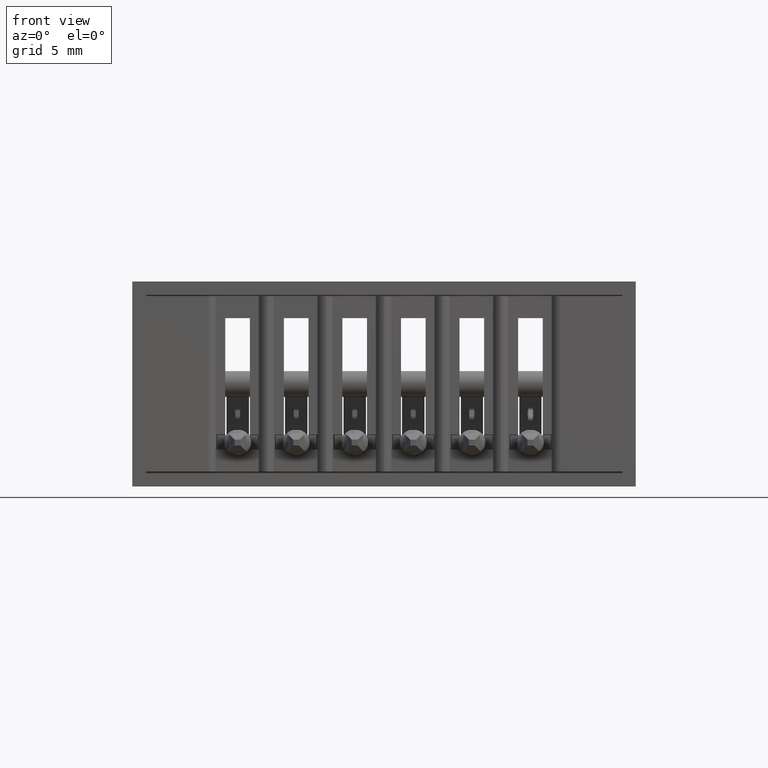
[diagram: clean part render]
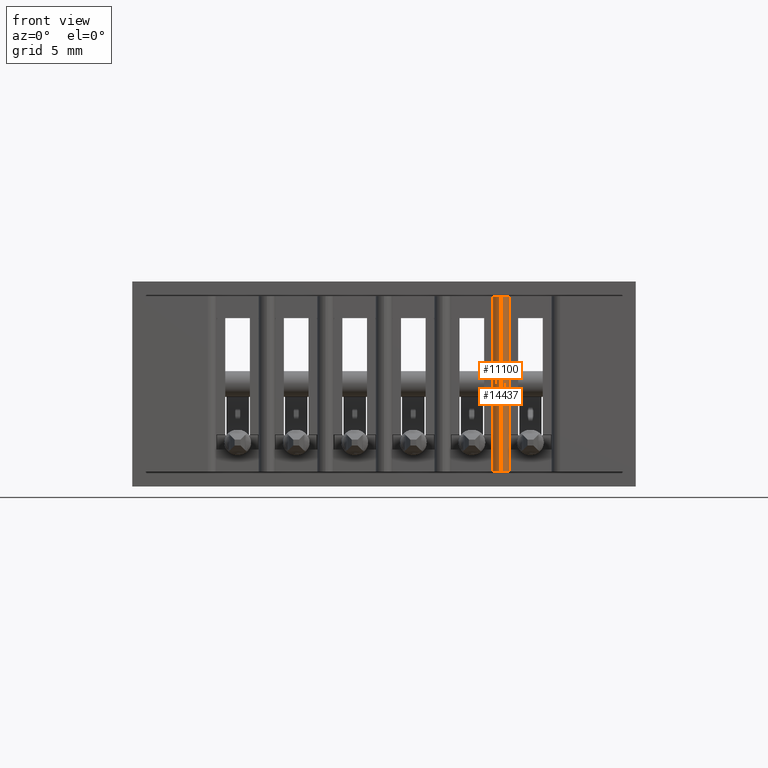
[diagram: same view with one multi-face feature highlighted, each face labeled with its STEP entity id]
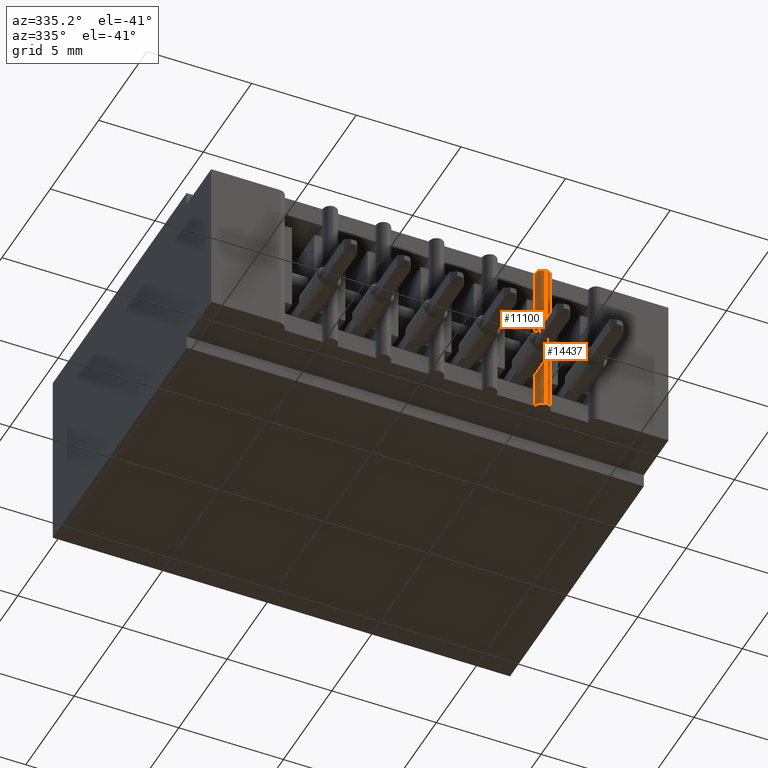
[diagram: same view with one multi-face feature highlighted, each face labeled with its STEP entity id]
A machine part, front view. The highlighted faces form ONE feature: a constant-radius fillet chain: 2 tangent blend faces with common blend radius 0.381 mm. The faces share edges in the B-rep.
A second angle (auxiliary view) of the same feature is appended — it is thin or edge-on in the first view.
Their STEP definitions:
[1] entity #14437 (Cylinder):
#158 = VERTEX_POINT ( 'NONE', #5307 ) ;
#283 = LINE ( 'NONE', #2545, #14104 ) ;
#459 = CIRCLE ( 'NONE', #10524, 0.01499999999999997689 ) ;
#464 = CARTESIAN_POINT ( 'NONE',  ( 0.6439999999999997948, 0.01499999999999997516, -0.3249999999999999556 ) ) ;
#583 = ORIENTED_EDGE ( 'NONE', *, *, #2300, .T. ) ;
#607 = VERTEX_POINT ( 'NONE', #4984 ) ;
#623 = DIRECTION ( 'NONE',  ( -0.0000000000000000000, -0.0000000000000000000, 1.000000000000000000 ) ) ;
#1417 = CARTESIAN_POINT ( 'NONE',  ( 0.6299999999999993383, 3.337045290419381758E-05, -0.02500000000000000486 ) ) ;
#1454 = ORIENTED_EDGE ( 'NONE', *, *, #5465, .T. ) ;
#1822 = VERTEX_POINT ( 'NONE', #1417 ) ;
#2186 = CARTESIAN_POINT ( 'NONE',  ( 0.6299999999999993383, 3.337045290419808662E-05, -0.1874999999999999722 ) ) ;
#2201 = LINE ( 'NONE', #12697, #14460 ) ;
#2300 = EDGE_CURVE ( 'NONE', #158, #6837, #9248, .T. ) ;
#2372 = ORIENTED_EDGE ( 'NONE', *, *, #11870, .T. ) ;
#2414 = CARTESIAN_POINT ( 'NONE',  ( 0.6289999999999997815, 0.01499999999999997689, -0.3499999999999999778 ) ) ;
#2475 = VERTEX_POINT ( 'NONE', #3617 ) ;
#2545 = CARTESIAN_POINT ( 'NONE',  ( 0.6439999999999997948, 0.01499999999999997516, -0.3499999999999999778 ) ) ;
#2807 = ORIENTED_EDGE ( 'NONE', *, *, #11250, .T. ) ;
#2895 = LINE ( 'NONE', #6412, #7635 ) ;
#3096 = FACE_OUTER_BOUND ( 'NONE', #3338, .T. ) ;
#3318 = DIRECTION ( 'NONE',  ( 0.0000000000000000000, 0.0000000000000000000, 1.000000000000000000 ) ) ;
#3330 = CARTESIAN_POINT ( 'NONE',  ( 0.6439999999999997948, 0.01499999999999998904, -0.08849999999999998146 ) ) ;
#3338 = EDGE_LOOP ( 'NONE', ( #583, #1454, #2372, #12014, #2807, #6605, #13481, #4679 ) ) ;
#3617 = CARTESIAN_POINT ( 'NONE',  ( 0.6439999999999997948, 0.01499999999999997516, -0.02500000000000000486 ) ) ;
#4125 = EDGE_CURVE ( 'NONE', #4941, #12778, #6968, .T. ) ;
#4511 = DIRECTION ( 'NONE',  ( 1.000000000000000000, 0.0000000000000000000, 0.0000000000000000000 ) ) ;
#4575 = DIRECTION ( 'NONE',  ( 0.0000000000000000000, 0.0000000000000000000, -1.000000000000000000 ) ) ;
#4679 = ORIENTED_EDGE ( 'NONE', *, *, #8354, .T. ) ;
#4941 = VERTEX_POINT ( 'NONE', #6573 ) ;
#4984 = CARTESIAN_POINT ( 'NONE',  ( 0.6439999999999997948, 0.01500000000000003240, -0.2875000000000000888 ) ) ;
#5307 = CARTESIAN_POINT ( 'NONE',  ( 0.6299999999999993383, 3.337045290419808662E-05, -0.3249999999999999556 ) ) ;
#5465 = EDGE_CURVE ( 'NONE', #6837, #607, #2201, .T. ) ;
#5628 = CARTESIAN_POINT ( 'NONE',  ( 0.6289999999999997815, 0.01499999999999997689, -0.3249999999999999556 ) ) ;
#5799 = DIRECTION ( 'NONE',  ( -0.0000000000000000000, -0.0000000000000000000, 1.000000000000000000 ) ) ;
#5919 = VECTOR ( 'NONE', #4575, 39.37007874015748143 ) ;
#6412 = CARTESIAN_POINT ( 'NONE',  ( 0.6439999999999997948, 0.01499999999999997516, -0.3499999999999999778 ) ) ;
#6439 = VECTOR ( 'NONE', #9344, 39.37007874015748143 ) ;
#6573 = CARTESIAN_POINT ( 'NONE',  ( 0.6439999999999997948, 0.01499999999999997516, -0.2615000000000001212 ) ) ;
#6605 = ORIENTED_EDGE ( 'NONE', *, *, #10390, .T. ) ;
#6837 = VERTEX_POINT ( 'NONE', #464 ) ;
#6968 = LINE ( 'NONE', #11553, #10004 ) ;
#6981 = DIRECTION ( 'NONE',  ( 1.000000000000000000, 0.0000000000000000000, 0.0000000000000000000 ) ) ;
#7514 = DIRECTION ( 'NONE',  ( -0.0000000000000000000, 0.0000000000000000000, 1.000000000000000000 ) ) ;
#7635 = VECTOR ( 'NONE', #623, 39.37007874015748143 ) ;
#8354 = EDGE_CURVE ( 'NONE', #1822, #158, #10281, .T. ) ;
#9248 = CIRCLE ( 'NONE', #11171, 0.01499999999999997689 ) ;
#9344 = DIRECTION ( 'NONE',  ( -0.0000000000000000000, -0.0000000000000000000, 1.000000000000000000 ) ) ;
#10004 = VECTOR ( 'NONE', #11620, 39.37007874015748143 ) ;
#10130 = VERTEX_POINT ( 'NONE', #11148 ) ;
#10281 = LINE ( 'NONE', #2186, #5919 ) ;
#10390 = EDGE_CURVE ( 'NONE', #10130, #2475, #13923, .T. ) ;
#10524 = AXIS2_PLACEMENT_3D ( 'NONE', #12027, #7514, #14138 ) ;
#11148 = CARTESIAN_POINT ( 'NONE',  ( 0.6439999999999997948, 0.01499999999999997516, -0.06250000000000001388 ) ) ;
#11171 = AXIS2_PLACEMENT_3D ( 'NONE', #5628, #3318, #4511 ) ;
#11250 = EDGE_CURVE ( 'NONE', #12778, #10130, #283, .T. ) ;
#11553 = CARTESIAN_POINT ( 'NONE',  ( 0.6439999999999997948, 0.01499999999999997516, -0.3499999999999999778 ) ) ;
#11620 = DIRECTION ( 'NONE',  ( -0.0000000000000000000, -0.0000000000000000000, 1.000000000000000000 ) ) ;
#11630 = DIRECTION ( 'NONE',  ( -0.0000000000000000000, -0.0000000000000000000, 1.000000000000000000 ) ) ;
#11870 = EDGE_CURVE ( 'NONE', #607, #4941, #2895, .T. ) ;
#12014 = ORIENTED_EDGE ( 'NONE', *, *, #4125, .T. ) ;
#12027 = CARTESIAN_POINT ( 'NONE',  ( 0.6289999999999997815, 0.01499999999999997689, -0.02500000000000000486 ) ) ;
#12241 = CYLINDRICAL_SURFACE ( 'NONE', #12588, 0.01499999999999997689 ) ;
#12588 = AXIS2_PLACEMENT_3D ( 'NONE', #2414, #11630, #6981 ) ;
#12608 = EDGE_CURVE ( 'NONE', #1822, #2475, #459, .T. ) ;
#12697 = CARTESIAN_POINT ( 'NONE',  ( 0.6439999999999997948, 0.01499999999999997516, -0.3499999999999999778 ) ) ;
#12778 = VERTEX_POINT ( 'NONE', #3330 ) ;
#12966 = DIRECTION ( 'NONE',  ( -0.0000000000000000000, -0.0000000000000000000, 1.000000000000000000 ) ) ;
#13481 = ORIENTED_EDGE ( 'NONE', *, *, #12608, .F. ) ;
#13923 = LINE ( 'NONE', #14072, #6439 ) ;
#14072 = CARTESIAN_POINT ( 'NONE',  ( 0.6439999999999997948, 0.01499999999999997516, -0.3499999999999999778 ) ) ;
#14104 = VECTOR ( 'NONE', #12966, 39.37007874015748143 ) ;
#14138 = DIRECTION ( 'NONE',  ( 1.000000000000000000, 0.0000000000000000000, 0.0000000000000000000 ) ) ;
#14437 = ADVANCED_FACE ( 'NONE', ( #3096 ), #12241, .T. ) ;
#14460 = VECTOR ( 'NONE', #5799, 39.37007874015748143 ) ;
[2] entity #11100 (Cylinder):
#33 = LINE ( 'NONE', #4912, #12721 ) ;
#158 = VERTEX_POINT ( 'NONE', #5307 ) ;
#298 = EDGE_CURVE ( 'NONE', #1822, #1115, #6093, .T. ) ;
#589 = AXIS2_PLACEMENT_3D ( 'NONE', #1983, #5641, #2056 ) ;
#655 = EDGE_CURVE ( 'NONE', #158, #7705, #830, .T. ) ;
#663 = DIRECTION ( 'NONE',  ( 1.000000000000000000, 0.0000000000000000000, 0.0000000000000000000 ) ) ;
#781 = EDGE_CURVE ( 'NONE', #1980, #9960, #6020, .T. ) ;
#830 = CIRCLE ( 'NONE', #589, 0.01499999999999997689 ) ;
#1050 = AXIS2_PLACEMENT_3D ( 'NONE', #10703, #12801, #9502 ) ;
#1115 = VERTEX_POINT ( 'NONE', #9985 ) ;
#1229 = EDGE_CURVE ( 'NONE', #7705, #1980, #8178, .T. ) ;
#1383 = EDGE_CURVE ( 'NONE', #9960, #9541, #5157, .T. ) ;
#1417 = CARTESIAN_POINT ( 'NONE',  ( 0.6299999999999993383, 3.337045290419381758E-05, -0.02500000000000000486 ) ) ;
#1822 = VERTEX_POINT ( 'NONE', #1417 ) ;
#1880 = DIRECTION ( 'NONE',  ( -0.0000000000000000000, -0.0000000000000000000, 1.000000000000000000 ) ) ;
#1980 = VERTEX_POINT ( 'NONE', #5505 ) ;
#1983 = CARTESIAN_POINT ( 'NONE',  ( 0.6309999999999996723, 0.01499999999999991618, -0.3249999999999999556 ) ) ;
#2056 = DIRECTION ( 'NONE',  ( 1.000000000000000000, -8.537024980200835623E-16, 0.0000000000000000000 ) ) ;
#2186 = CARTESIAN_POINT ( 'NONE',  ( 0.6299999999999993383, 3.337045290419808662E-05, -0.1874999999999999722 ) ) ;
#2258 = CARTESIAN_POINT ( 'NONE',  ( 0.6159999999999996589, 0.01499999999999993179, -0.3499999999999999778 ) ) ;
#2496 = ORIENTED_EDGE ( 'NONE', *, *, #298, .T. ) ;
#3508 = CARTESIAN_POINT ( 'NONE',  ( 0.6159999999999996589, 0.01499999999999993179, -0.08850000000000002309 ) ) ;
#3639 = ORIENTED_EDGE ( 'NONE', *, *, #6244, .F. ) ;
#4575 = DIRECTION ( 'NONE',  ( 0.0000000000000000000, 0.0000000000000000000, -1.000000000000000000 ) ) ;
#4912 = CARTESIAN_POINT ( 'NONE',  ( 0.6159999999999996589, 0.01499999999999993179, -0.3499999999999999778 ) ) ;
#5157 = LINE ( 'NONE', #7275, #10178 ) ;
#5307 = CARTESIAN_POINT ( 'NONE',  ( 0.6299999999999993383, 3.337045290419808662E-05, -0.3249999999999999556 ) ) ;
#5392 = VECTOR ( 'NONE', #13725, 39.37007874015748143 ) ;
#5505 = CARTESIAN_POINT ( 'NONE',  ( 0.6159999999999996589, 0.01499999999999993179, -0.2875000000000000888 ) ) ;
#5543 = CARTESIAN_POINT ( 'NONE',  ( 0.6159999999999996589, 0.01500000000000002720, -0.2615000000000001767 ) ) ;
#5641 = DIRECTION ( 'NONE',  ( -0.0000000000000000000, -0.0000000000000000000, -1.000000000000000000 ) ) ;
#5901 = EDGE_LOOP ( 'NONE', ( #6381, #2496, #7015, #3639, #14838, #12990, #8558, #11031 ) ) ;
#5919 = VECTOR ( 'NONE', #4575, 39.37007874015748143 ) ;
#5966 = LINE ( 'NONE', #13759, #8187 ) ;
#6020 = LINE ( 'NONE', #12617, #13534 ) ;
#6093 = CIRCLE ( 'NONE', #1050, 0.01499999999999997689 ) ;
#6244 = EDGE_CURVE ( 'NONE', #9541, #12428, #33, .T. ) ;
#6278 = EDGE_CURVE ( 'NONE', #12428, #1115, #5966, .T. ) ;
#6369 = FACE_OUTER_BOUND ( 'NONE', #5901, .T. ) ;
#6381 = ORIENTED_EDGE ( 'NONE', *, *, #8354, .F. ) ;
#6938 = AXIS2_PLACEMENT_3D ( 'NONE', #10943, #1880, #663 ) ;
#7015 = ORIENTED_EDGE ( 'NONE', *, *, #6278, .F. ) ;
#7275 = CARTESIAN_POINT ( 'NONE',  ( 0.6159999999999996589, 0.01499999999999993179, -0.3499999999999999778 ) ) ;
#7705 = VERTEX_POINT ( 'NONE', #8888 ) ;
#8178 = LINE ( 'NONE', #2258, #5392 ) ;
#8187 = VECTOR ( 'NONE', #12639, 39.37007874015748143 ) ;
#8354 = EDGE_CURVE ( 'NONE', #1822, #158, #10281, .T. ) ;
#8538 = DIRECTION ( 'NONE',  ( -0.0000000000000000000, -0.0000000000000000000, 1.000000000000000000 ) ) ;
#8558 = ORIENTED_EDGE ( 'NONE', *, *, #1229, .F. ) ;
#8888 = CARTESIAN_POINT ( 'NONE',  ( 0.6159999999999996589, 0.01499999999999993179, -0.3249999999999999556 ) ) ;
#9502 = DIRECTION ( 'NONE',  ( 1.000000000000000000, -8.537024980200835623E-16, 0.0000000000000000000 ) ) ;
#9541 = VERTEX_POINT ( 'NONE', #3508 ) ;
#9960 = VERTEX_POINT ( 'NONE', #5543 ) ;
#9961 = CARTESIAN_POINT ( 'NONE',  ( 0.6159999999999996589, 0.01499999999999998904, -0.06250000000000002776 ) ) ;
#9985 = CARTESIAN_POINT ( 'NONE',  ( 0.6159999999999996589, 0.01499999999999993179, -0.02500000000000000486 ) ) ;
#10178 = VECTOR ( 'NONE', #8538, 39.37007874015748143 ) ;
#10281 = LINE ( 'NONE', #2186, #5919 ) ;
#10597 = DIRECTION ( 'NONE',  ( -0.0000000000000000000, -0.0000000000000000000, 1.000000000000000000 ) ) ;
#10703 = CARTESIAN_POINT ( 'NONE',  ( 0.6309999999999996723, 0.01499999999999991618, -0.02500000000000000486 ) ) ;
#10943 = CARTESIAN_POINT ( 'NONE',  ( 0.6309999999999996723, 0.01499999999999991618, -0.3499999999999999778 ) ) ;
#11031 = ORIENTED_EDGE ( 'NONE', *, *, #655, .F. ) ;
#11100 = ADVANCED_FACE ( 'NONE', ( #6369 ), #11254, .T. ) ;
#11254 = CYLINDRICAL_SURFACE ( 'NONE', #6938, 0.01499999999999997689 ) ;
#11527 = DIRECTION ( 'NONE',  ( -0.0000000000000000000, -0.0000000000000000000, 1.000000000000000000 ) ) ;
#12428 = VERTEX_POINT ( 'NONE', #9961 ) ;
#12617 = CARTESIAN_POINT ( 'NONE',  ( 0.6159999999999996589, 0.01499999999999993179, -0.3499999999999999778 ) ) ;
#12639 = DIRECTION ( 'NONE',  ( -0.0000000000000000000, -0.0000000000000000000, 1.000000000000000000 ) ) ;
#12721 = VECTOR ( 'NONE', #11527, 39.37007874015748143 ) ;
#12801 = DIRECTION ( 'NONE',  ( 0.0000000000000000000, -0.0000000000000000000, -1.000000000000000000 ) ) ;
#12990 = ORIENTED_EDGE ( 'NONE', *, *, #781, .F. ) ;
#13534 = VECTOR ( 'NONE', #10597, 39.37007874015748143 ) ;
#13725 = DIRECTION ( 'NONE',  ( -0.0000000000000000000, -0.0000000000000000000, 1.000000000000000000 ) ) ;
#13759 = CARTESIAN_POINT ( 'NONE',  ( 0.6159999999999996589, 0.01499999999999993179, -0.3499999999999999778 ) ) ;
#14838 = ORIENTED_EDGE ( 'NONE', *, *, #1383, .F. ) ;